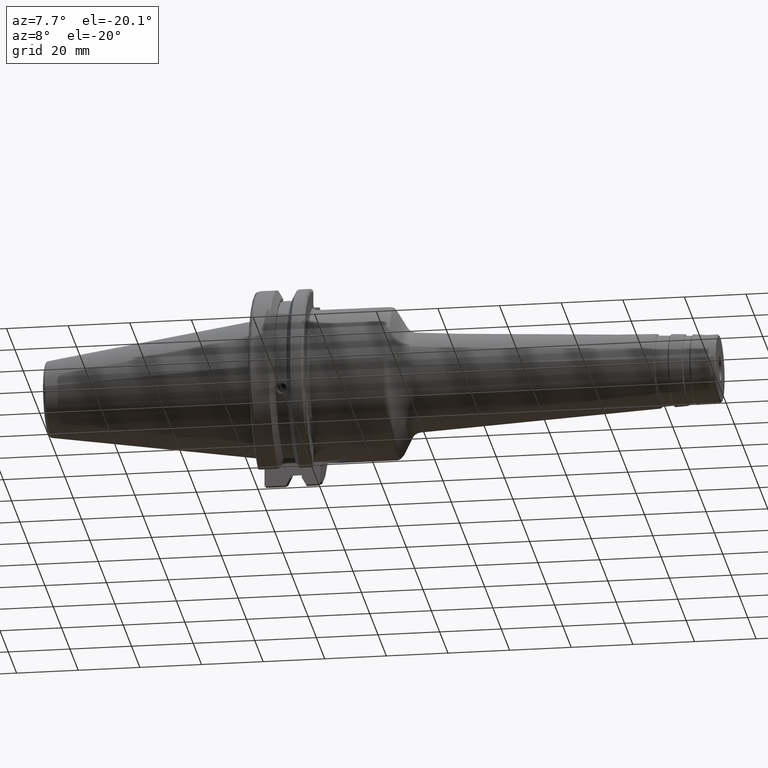
[diagram: clean part render]
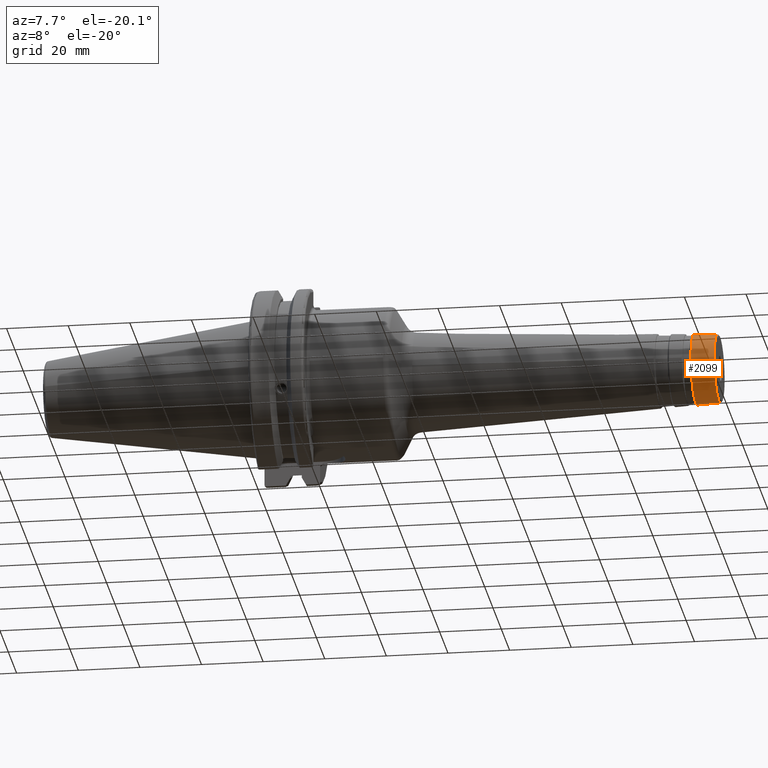
[diagram: same view with one face highlighted and labeled with its STEP entity id]
A machine part, auxiliary view. The second image highlights one B-rep face of the part: STEP entity #2099.
In plain terms, the highlighted conical surface has half-angle 3 deg.
Its self-contained STEP definition (entity closure, byte-faithful):
#174=LINE('',#3332,#269);
#269=VECTOR('',#2644,11.2144933145358);
#364=CONICAL_SURFACE('',#2271,11.2144933145358,0.0523598775598299);
#393=FACE_OUTER_BOUND('',#501,.T.);
#501=EDGE_LOOP('',(#1468,#1469,#1470,#1471,#1472,#1473,#1474,#1475));
#653=CIRCLE('',#2267,11.4169001577015);
#654=CIRCLE('',#2268,11.4169001577015);
#656=CIRCLE('',#2270,11.4169001577015);
#657=CIRCLE('',#2272,11.0248324840198);
#658=CIRCLE('',#2273,11.0248324840198);
#659=CIRCLE('',#2274,11.0248324840198);
#827=VERTEX_POINT('',#3319);
#828=VERTEX_POINT('',#3320);
#829=VERTEX_POINT('',#3322);
#830=VERTEX_POINT('',#3327);
#831=VERTEX_POINT('',#3328);
#832=VERTEX_POINT('',#3330);
#1081=EDGE_CURVE('',#827,#828,#653,.T.);
#1082=EDGE_CURVE('',#828,#829,#654,.T.);
#1084=EDGE_CURVE('',#829,#827,#656,.T.);
#1085=EDGE_CURVE('',#830,#831,#657,.T.);
#1086=EDGE_CURVE('',#832,#830,#658,.T.);
#1087=EDGE_CURVE('',#832,#828,#174,.T.);
#1088=EDGE_CURVE('',#831,#832,#659,.T.);
#1468=ORIENTED_EDGE('',*,*,#1085,.F.);
#1469=ORIENTED_EDGE('',*,*,#1086,.F.);
#1470=ORIENTED_EDGE('',*,*,#1087,.T.);
#1471=ORIENTED_EDGE('',*,*,#1081,.F.);
#1472=ORIENTED_EDGE('',*,*,#1084,.F.);
#1473=ORIENTED_EDGE('',*,*,#1082,.F.);
#1474=ORIENTED_EDGE('',*,*,#1087,.F.);
#1475=ORIENTED_EDGE('',*,*,#1088,.F.);
#2099=ADVANCED_FACE('',(#393),#364,.T.);
#2267=AXIS2_PLACEMENT_3D('',#3321,#2630,#2631);
#2268=AXIS2_PLACEMENT_3D('',#3323,#2632,#2633);
#2270=AXIS2_PLACEMENT_3D('',#3325,#2636,#2637);
#2271=AXIS2_PLACEMENT_3D('',#3326,#2638,#2639);
#2272=AXIS2_PLACEMENT_3D('',#3329,#2640,#2641);
#2273=AXIS2_PLACEMENT_3D('',#3331,#2642,#2643);
#2274=AXIS2_PLACEMENT_3D('',#3333,#2645,#2646);
#2630=DIRECTION('center_axis',(-1.,0.,0.));
#2631=DIRECTION('ref_axis',(0.,-1.,3.06161699786838E-17));
#2632=DIRECTION('center_axis',(-1.,0.,0.));
#2633=DIRECTION('ref_axis',(0.,-1.,3.06161699786838E-17));
#2636=DIRECTION('center_axis',(-1.,0.,0.));
#2637=DIRECTION('ref_axis',(0.,-1.,3.06161699786838E-17));
#2638=DIRECTION('center_axis',(-1.,0.,0.));
#2639=DIRECTION('ref_axis',(0.,1.,0.));
#2640=DIRECTION('center_axis',(1.,0.,0.));
#2641=DIRECTION('ref_axis',(0.,-1.,3.06161699786838E-17));
#2642=DIRECTION('center_axis',(1.,0.,0.));
#2643=DIRECTION('ref_axis',(0.,-1.,3.06161699786838E-17));
#2644=DIRECTION('',(-0.998629534754574,-0.0523359562429439,-6.40930612932371E-18));
#2645=DIRECTION('center_axis',(1.,0.,0.));
#2646=DIRECTION('ref_axis',(0.,-1.,3.06161699786838E-17));
#3319=CARTESIAN_POINT('',(142.045071105762,11.4169001577015,-3.49541755857852E-15));
#3320=CARTESIAN_POINT('',(142.045071105762,-11.4169001577015,-1.39816702343141E-15));
#3321=CARTESIAN_POINT('Origin',(142.045071105762,0.,-1.74770877928926E-15));
#3322=CARTESIAN_POINT('',(142.045071105762,-1.39816702343141E-15,11.4169001577015));
#3323=CARTESIAN_POINT('Origin',(142.045071105762,0.,-1.74770877928926E-15));
#3325=CARTESIAN_POINT('Origin',(142.045071105762,0.,-1.74770877928926E-15));
#3326=CARTESIAN_POINT('Origin',(145.907223746739,0.,0.));
#3327=CARTESIAN_POINT('',(149.526167978121,11.0248324840198,-6.75076290634533E-16));
#3328=CARTESIAN_POINT('',(149.526167978121,-1.35015258126907E-15,11.0248324840198));
#3329=CARTESIAN_POINT('Origin',(149.526167978121,0.,-1.68769072658633E-15));
#3330=CARTESIAN_POINT('',(149.526167978121,-11.0248324840198,-1.35015258126907E-15));
#3331=CARTESIAN_POINT('Origin',(149.526167978121,0.,-1.68769072658633E-15));
#3332=CARTESIAN_POINT('',(145.907223746739,-11.2144933145358,-1.37337933417057E-15));
#3333=CARTESIAN_POINT('Origin',(149.526167978121,0.,-1.68769072658633E-15));